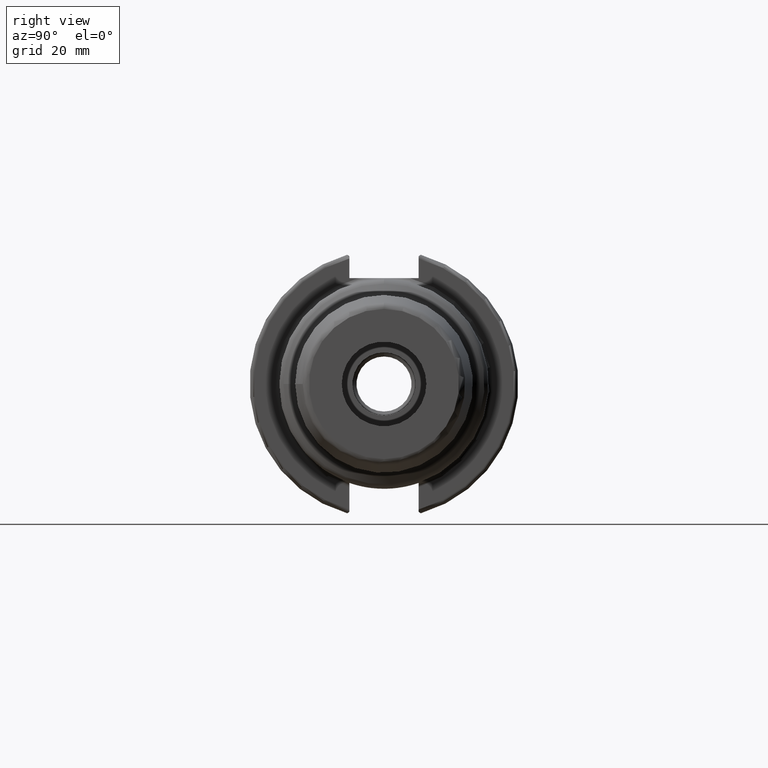
[diagram: clean part render]
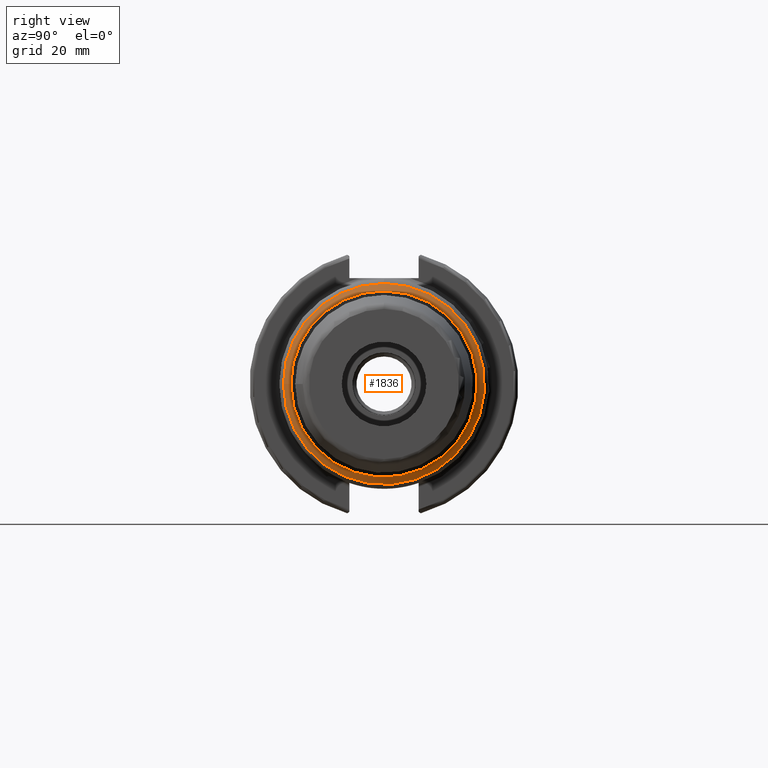
[diagram: same view with one face highlighted and labeled with its STEP entity id]
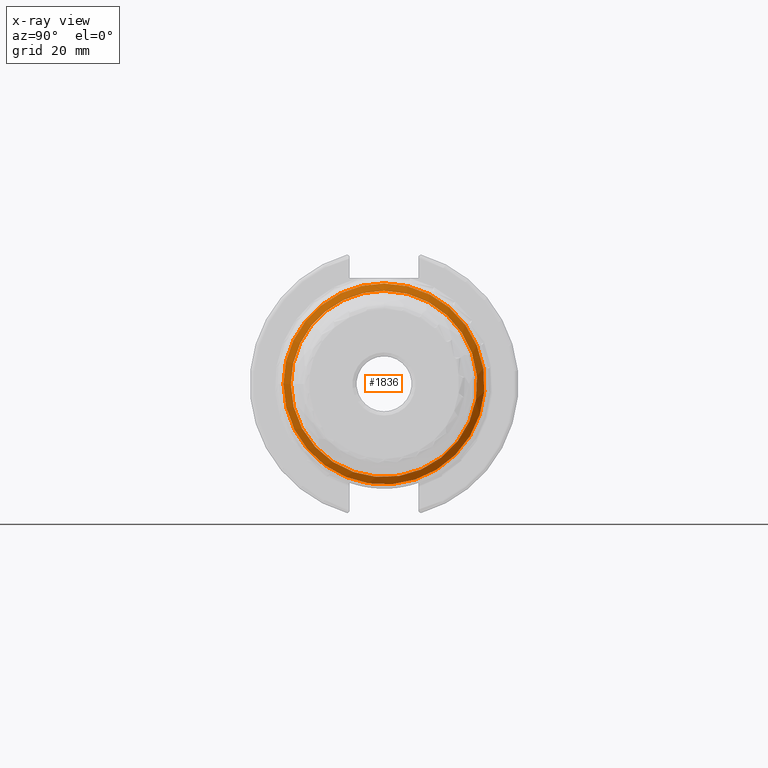
[diagram: x-ray of the same camera — body ghosted, the highlighted face saturated]
A machine part, right view. The second image highlights one B-rep face of the part: STEP entity #1836.
The next image is the same camera in x-ray: the body ghosted, the highlighted face saturated — about 0% of this face is hidden behind the body in this view.
In plain terms, the highlighted conical surface has half-angle 60 deg.
Its self-contained STEP definition (entity closure, byte-faithful):
#157=CONICAL_SURFACE('',#2032,22.875,1.0471975511966);
#197=FACE_OUTER_BOUND('',#306,.T.);
#306=EDGE_LOOP('',(#1357,#1358,#1359,#1360,#1361,#1362));
#413=LINE('',#3089,#507);
#507=VECTOR('',#2400,22.875);
#648=CIRCLE('',#2029,22.);
#650=CIRCLE('',#2031,22.);
#651=CIRCLE('',#2033,23.75);
#652=CIRCLE('',#2034,23.75);
#775=VERTEX_POINT('',#3082);
#776=VERTEX_POINT('',#3083);
#777=VERTEX_POINT('',#3088);
#778=VERTEX_POINT('',#3090);
#992=EDGE_CURVE('',#775,#776,#648,.T.);
#994=EDGE_CURVE('',#776,#775,#650,.T.);
#995=EDGE_CURVE('',#775,#777,#413,.T.);
#996=EDGE_CURVE('',#778,#777,#651,.T.);
#997=EDGE_CURVE('',#777,#778,#652,.T.);
#1357=ORIENTED_EDGE('',*,*,#992,.F.);
#1358=ORIENTED_EDGE('',*,*,#995,.T.);
#1359=ORIENTED_EDGE('',*,*,#996,.F.);
#1360=ORIENTED_EDGE('',*,*,#997,.F.);
#1361=ORIENTED_EDGE('',*,*,#995,.F.);
#1362=ORIENTED_EDGE('',*,*,#994,.F.);
#1836=ADVANCED_FACE('',(#197),#157,.T.);
#2029=AXIS2_PLACEMENT_3D('',#3084,#2392,#2393);
#2031=AXIS2_PLACEMENT_3D('',#3086,#2396,#2397);
#2032=AXIS2_PLACEMENT_3D('',#3087,#2398,#2399);
#2033=AXIS2_PLACEMENT_3D('',#3091,#2401,#2402);
#2034=AXIS2_PLACEMENT_3D('',#3092,#2403,#2404);
#2392=DIRECTION('center_axis',(1.,0.,0.));
#2393=DIRECTION('ref_axis',(0.,-1.,3.06161699786839E-17));
#2396=DIRECTION('center_axis',(1.,0.,0.));
#2397=DIRECTION('ref_axis',(0.,-1.,3.06161699786839E-17));
#2398=DIRECTION('center_axis',(-1.,0.,0.));
#2399=DIRECTION('ref_axis',(0.,1.,0.));
#2400=DIRECTION('',(-0.5,-0.866025403784439,-1.06057523872491E-16));
#2401=DIRECTION('center_axis',(-1.,0.,0.));
#2402=DIRECTION('ref_axis',(0.,-1.,3.06161699786838E-17));
#2403=DIRECTION('center_axis',(-1.,0.,0.));
#2404=DIRECTION('ref_axis',(0.,-1.,3.06161699786838E-17));
#3082=CARTESIAN_POINT('',(45.9226497308104,-22.,-2.69422295812418E-15));
#3083=CARTESIAN_POINT('',(45.9226497308104,-2.69422295812418E-15,22.));
#3084=CARTESIAN_POINT('Origin',(45.9226497308104,0.,-3.36777869765522E-15));
#3086=CARTESIAN_POINT('Origin',(45.9226497308104,0.,-3.36777869765522E-15));
#3087=CARTESIAN_POINT('Origin',(45.4174682452695,0.,0.));
#3088=CARTESIAN_POINT('',(44.9122867597285,-23.75,-2.90853614797496E-15));
#3089=CARTESIAN_POINT('',(45.4174682452695,-22.875,-2.80137955304957E-15));
#3090=CARTESIAN_POINT('',(44.9122867597285,-2.90853614797496E-15,23.75));
#3091=CARTESIAN_POINT('Origin',(44.9122867597285,0.,-3.6356701849687E-15));
#3092=CARTESIAN_POINT('Origin',(44.9122867597285,0.,-3.6356701849687E-15));